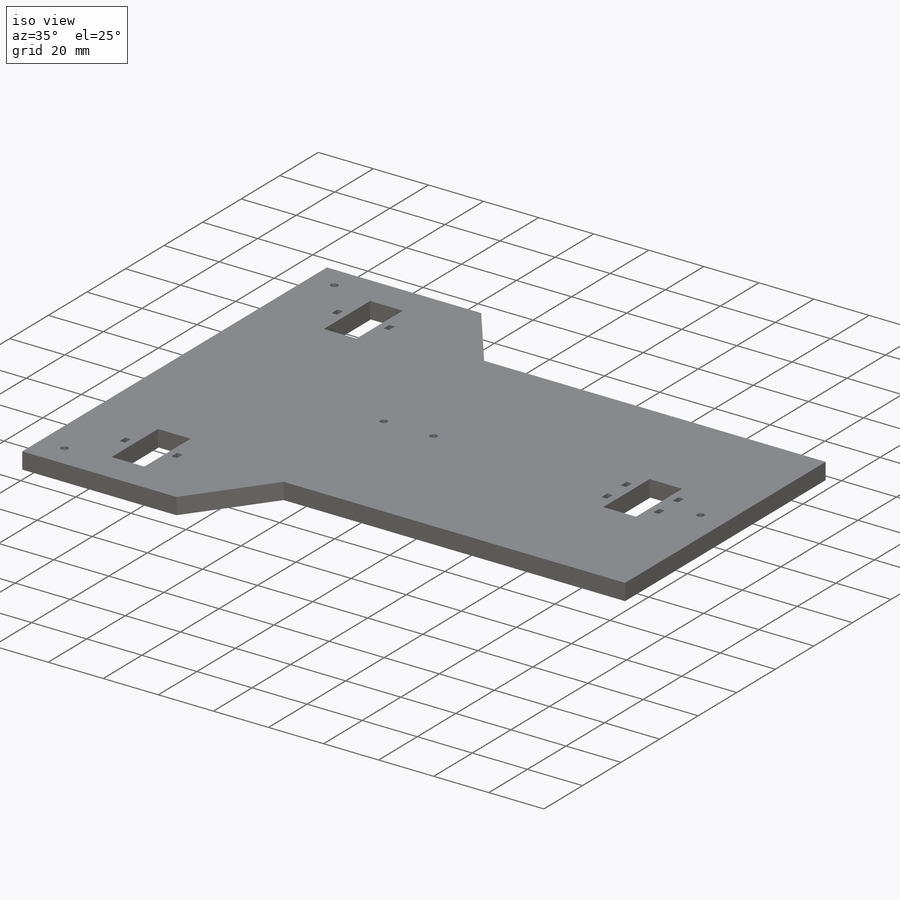
[diagram: iso view]
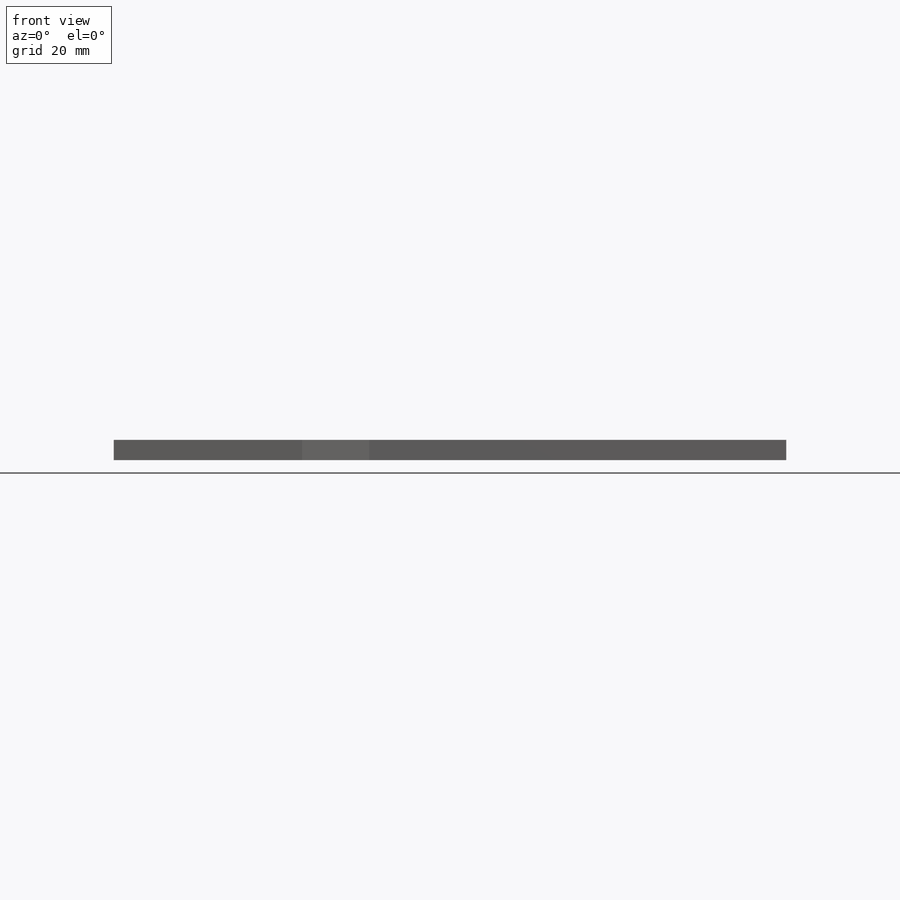
[diagram: front view]
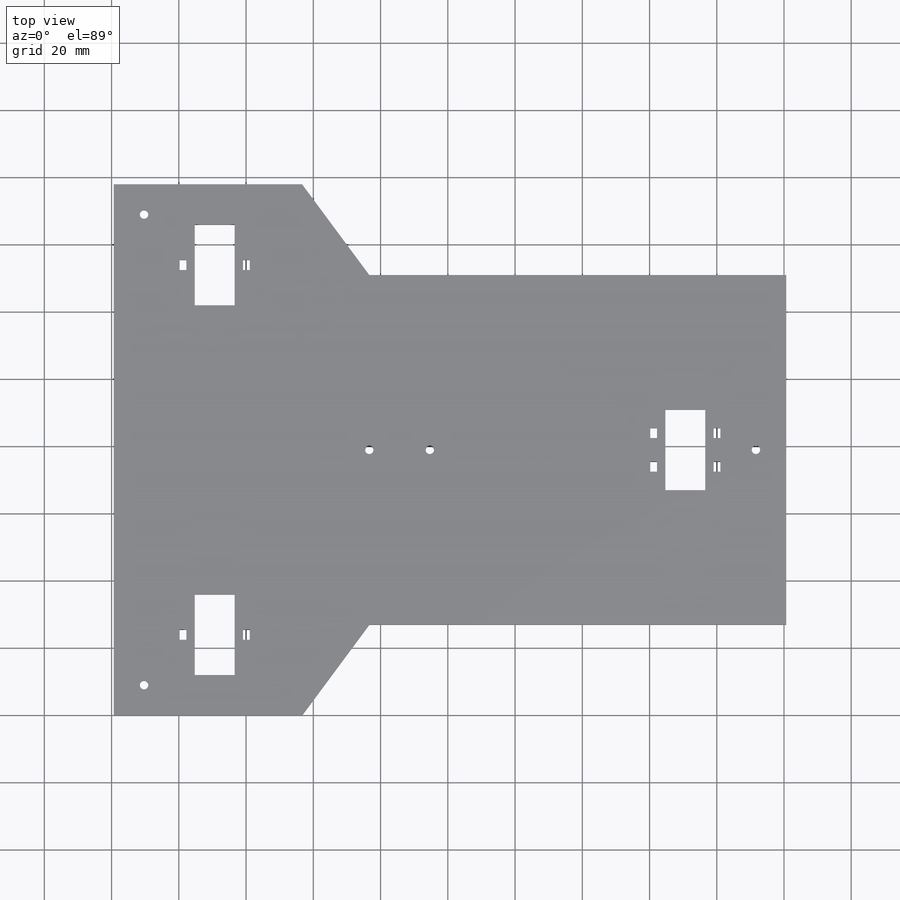
[diagram: top view]
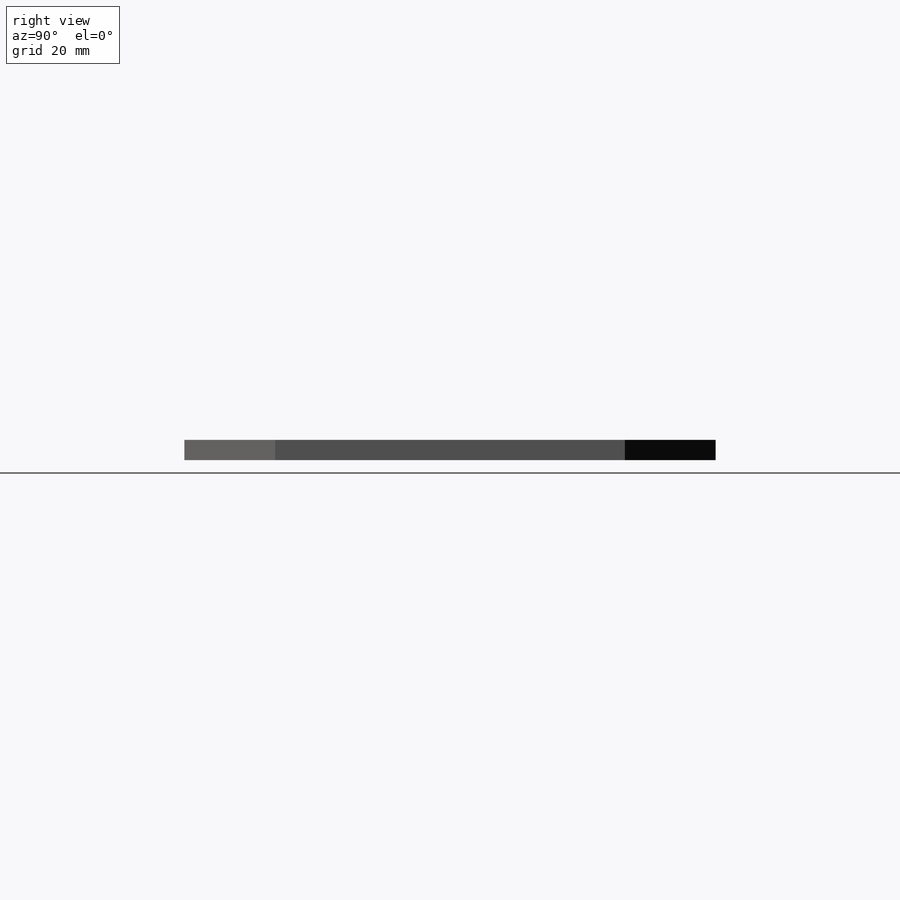
[diagram: right view]
SOLIDWORKS PART (.sldprt)
format: sldprt  version: not decoded by parser v0  size: 332,800 bytes
history: native  units: mm
features: plane x5, sketch x5, hole x2, material x1, extrude x1 (+9 scaffold rows collapsed)
feature tree (23):
  scaffold x9  (default folders/planes/origin — collapsed)
  material  "Matériau <non spécifié>"
  plane  "Plan de face"
  plane  "Plan de dessus"
  plane  "Plan de droite"
  sketch  "Esquisse1"  dims[c1.D1=~56.000243mm c1.D2=158.0mm c1.D3=~56.000243mm c1.D4=200.0mm c1.D5=104.0mm c1.D6=~11.857651mm c1.D7=~11.857651mm c1.D8=~11.857651mm c1.D9=24.0mm c1.D10=24.0mm c1.D11=24.0mm c1.D12=12.0mm c1.D13=~24.071258mm c1.D14=~123.999757mm c2.D6=12.0mm c2.D8=140.0mm c2.D9=3.5mm c2.D11=3.5mm c2.D15=3.0mm c2.D16=2.0mm c2.D17=2.5mm c2.D18=2.5mm c2.D19=2.5mm c2.D20=2.5mm c2.D21=200.0mm]
  extrude  "Boss.-Extru.1"  Depth=6mm
  hole  "Dégagement M2.51"  Diameter=2.5mm Depth=6mm
  sketch  "Esquisse3"  dims[D1=9.0mm D2=9.0mm D3=9.0mm D4=9.0mm D5=9.0mm D6=76.0mm D7=106.0mm D8=140.0mm D9=182.0mm D10=18.0mm]
  sketch  "Esquisse4"  dims[hole-wizard template sketch: 60 standard entries collapsed; hole parameters kept: c18.Profondeur du perçage jusqu'au prochain=6.0mm]
  plane  "Plan1"
  plane  "Plan2"  Offset=100mm
  hole  "Dégagement M31"  Diameter=3.25mm Depth=4mm
  sketch  "Esquisse6"
  sketch  "Esquisse5"  dims[hole-wizard template sketch: 46 standard entries collapsed; hole parameters kept: c15.Diamètre du perçage=3.25mm c15.Profondeur du perçage=4.0mm c15.D3=~14.816244mm c15.Angle de pointe=180.0deg]
decode coverage: 7 of 8 modeling features carry decoded parameters
note: ~ marks probable driven/reference dimensions
note: suppression state not decoded; provenance and decode notes live in map.json
